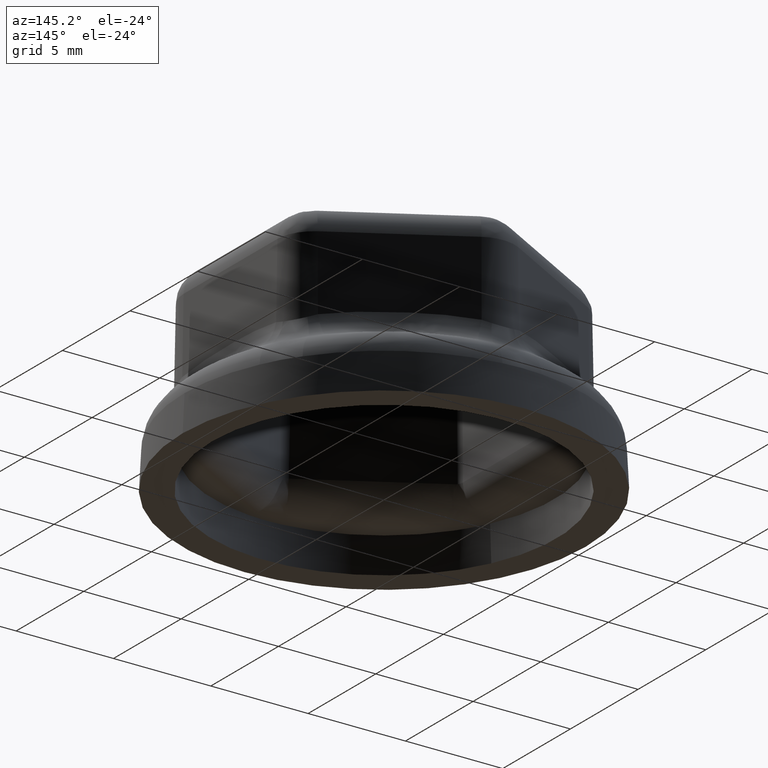
[diagram: clean part render]
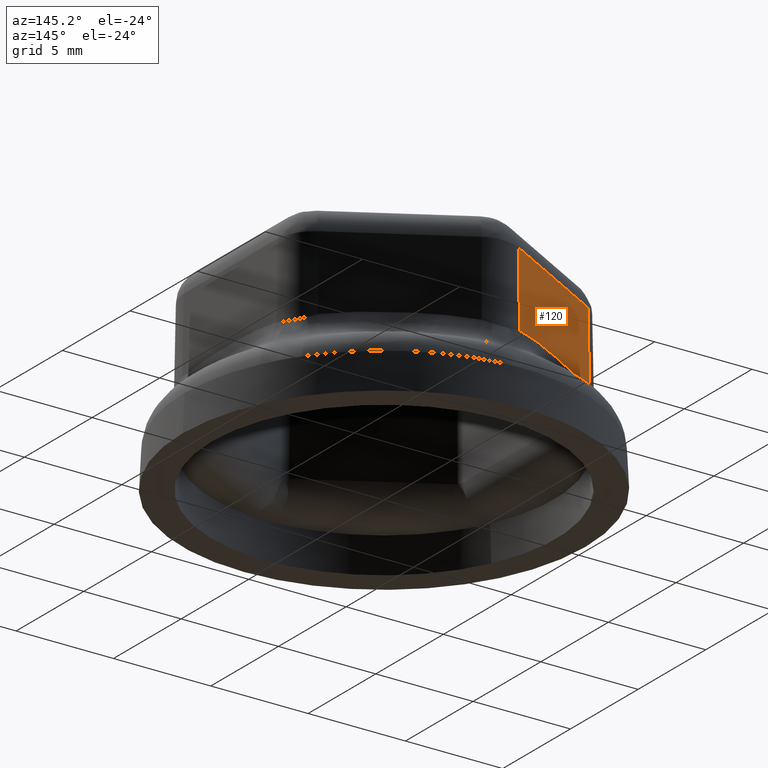
[diagram: same view with one face highlighted and labeled with its STEP entity id]
A machine part, auxiliary view. The second image highlights one B-rep face of the part: STEP entity #120.
In plain terms, the highlighted planar face has unit normal (-0.4999, 0.8659, 0.0175).
Its self-contained STEP definition (entity closure, byte-faithful):
#120 = ADVANCED_FACE( '', ( #274 ), #275, .T. );
#274 = FACE_OUTER_BOUND( '', #1280, .T. );
#275 = PLANE( '', #1281 );
#1280 = EDGE_LOOP( '', ( #4185, #4186, #4187, #4188 ) );
#1281 = AXIS2_PLACEMENT_3D( '', #4189, #4190, #4191 );
#4185 = ORIENTED_EDGE( '', *, *, #4664, .T. );
#4186 = ORIENTED_EDGE( '', *, *, #4670, .T. );
#4187 = ORIENTED_EDGE( '', *, *, #4671, .F. );
#4188 = ORIENTED_EDGE( '', *, *, #4672, .T. );
#4189 = CARTESIAN_POINT( '', ( -11.5000190381055, 2.59806521969801, 1.80000000000000 ) );
#4190 = DIRECTION( '', ( -0.499923847578195, 0.865893503920754, 0.0174524064372835 ) );
#4191 = DIRECTION( '', ( -0.866025403784439, -0.500000000000000, 0.000000000000000 ) );
#4664 = EDGE_CURVE( '', #4996, #4994, #4997, .T. );
#4670 = EDGE_CURVE( '', #4994, #5005, #5006, .T. );
#4671 = EDGE_CURVE( '', #5007, #5005, #5008, .T. );
#4672 = EDGE_CURVE( '', #5007, #4996, #5009, .T. );
#4994 = VERTEX_POINT( '', #5788 );
#4996 = VERTEX_POINT( '', #5802 );
#4997 = LINE( '', #5803, #5804 );
#5005 = VERTEX_POINT( '', #5883 );
#5006 = B_SPLINE_CURVE_WITH_KNOTS( '', 3, ( #5884, #5885, #5886, #5887, #5888, #5889, #5890, #5891, #5892, #5893, #5894, #5895, #5896, #5897, #5898, #5899, #5900, #5901, #5902, #5903, #5904, #5905, #5906 ), .UNSPECIFIED., .F., .F., ( 4, 2, 2, 1, 1, 1, 1, 1, 1, 1, 1, 1, 1, 1, 2, 2, 4 ), ( 0.000000000000000, 0.000433202000073393, 0.000866404000146787, 0.00129960600022018, 0.00173280800029357, 0.00216601000036697, 0.00259921200044036, 0.00303241400051375, 0.00346561600058714, 0.00389881800066054, 0.00433202000073393, 0.00476522200080732, 0.00519842400088072, 0.00563162600095411, 0.00606482800102750, 0.00649803000110090, 0.00693123200117429 ), .UNSPECIFIED. );
#5007 = VERTEX_POINT( '', #5907 );
#5008 = LINE( '', #5908, #5909 );
#5009 = LINE( '', #5910, #5911 );
#5788 = CARTESIAN_POINT( '', ( -0.976678470899358, 8.61994789777434, 4.46781624536902 ) );
#5802 = CARTESIAN_POINT( '', ( -0.943004488106748, 8.56162284868434, 8.32617860965599 ) );
#5803 = CARTESIAN_POINT( '', ( -0.999961923789093, 8.66027602115500, 1.80000000000000 ) );
#5804 = VECTOR( '', #7148, 1000.00000000000 );
#5883 = CARTESIAN_POINT( '', ( -6.97675462289311, 5.15580231631732, 4.46781624264885 ) );
#5884 = CARTESIAN_POINT( '', ( -0.976678470899358, 8.61994789777434, 4.46781624536902 ) );
#5885 = CARTESIAN_POINT( '', ( -1.10114220800485, 8.54759557356925, 4.49228377003669 ) );
#5886 = CARTESIAN_POINT( '', ( -1.22568253839815, 8.47526063299175, 4.51369480037329 ) );
#5887 = CARTESIAN_POINT( '', ( -1.47488735103505, 8.33061892936499, 4.55156251795044 ) );
#5888 = CARTESIAN_POINT( '', ( -1.59955188608758, 8.25831217830124, 4.56801709782371 ) );
#5889 = CARTESIAN_POINT( '', ( -1.84898177967836, 8.11372155909180, 4.59690284479627 ) );
#5890 = CARTESIAN_POINT( '', ( -2.09851253923661, 7.96915383244208, 4.62176348373911 ) );
#5891 = CARTESIAN_POINT( '', ( -2.47305430882765, 7.75235799075791, 4.64925244122904 ) );
#5892 = CARTESIAN_POINT( '', ( -2.84779601406205, 7.53560752650649, 4.66876286459328 ) );
#5893 = CARTESIAN_POINT( '', ( -3.22270242028007, 7.31889444282253, 4.68170081095385 ) );
#5894 = CARTESIAN_POINT( '', ( -3.59774835887265, 7.10221302743360, 4.68907064653012 ) );
#5895 = CARTESIAN_POINT( '', ( -3.97291870643803, 6.88555984792948, 4.69147587840530 ) );
#5896 = CARTESIAN_POINT( '', ( -4.34820842538304, 6.66893376097703, 4.68911753431192 ) );
#5897 = CARTESIAN_POINT( '', ( -4.72362261097165, 6.45233592299837, 4.68179228513531 ) );
#5898 = CARTESIAN_POINT( '', ( -5.09917651003745, 6.23576979441783, 4.66889169818047 ) );
#5899 = CARTESIAN_POINT( '', ( -5.47489555171459, 6.01924114663667, 4.64940101084203 ) );
#5900 = CARTESIAN_POINT( '', ( -5.85081548450280, 5.80275809314138, 4.62189366095042 ) );
#5901 = CARTESIAN_POINT( '', ( -6.10159376676405, 5.65847350448840, 4.59697126826095 ) );
#5902 = CARTESIAN_POINT( '', ( -6.35247403658133, 5.51421206295110, 4.56797900997647 ) );
#5903 = CARTESIAN_POINT( '', ( -6.47770807997894, 5.44224076437743, 4.55147670581224 ) );
#5904 = CARTESIAN_POINT( '', ( -6.72764930693670, 5.29870095282317, 4.51357995657797 ) );
#5905 = CARTESIAN_POINT( '', ( -6.85236011989769, 5.22713032375545, 4.49218653612591 ) );
#5906 = CARTESIAN_POINT( '', ( -6.97675462286860, 5.15580231627486, 4.46781624545769 ) );
#5907 = CARTESIAN_POINT( '', ( -6.94308063942335, 5.09747726756345, 8.32617860965597 ) );
#5908 = CARTESIAN_POINT( '', ( -7.00003807621090, 5.19613043939601, 1.80000000000000 ) );
#5909 = VECTOR( '', #7151, 1000.00000000000 );
#5910 = CARTESIAN_POINT( '', ( -11.4430616024231, 2.49941204722734, 8.32617860965594 ) );
#5911 = VECTOR( '', #7152, 1000.00000000000 );
#7148 = DIRECTION( '', ( -0.00872620321864175, 0.0151142273318586, -0.999847695156391 ) );
#7151 = DIRECTION( '', ( -0.00872620338796593, 0.0151142272340992, -0.999847695156391 ) );
#7152 = DIRECTION( '', ( 0.866025403784439, 0.500000000000000, 4.08440629208400E-015 ) );